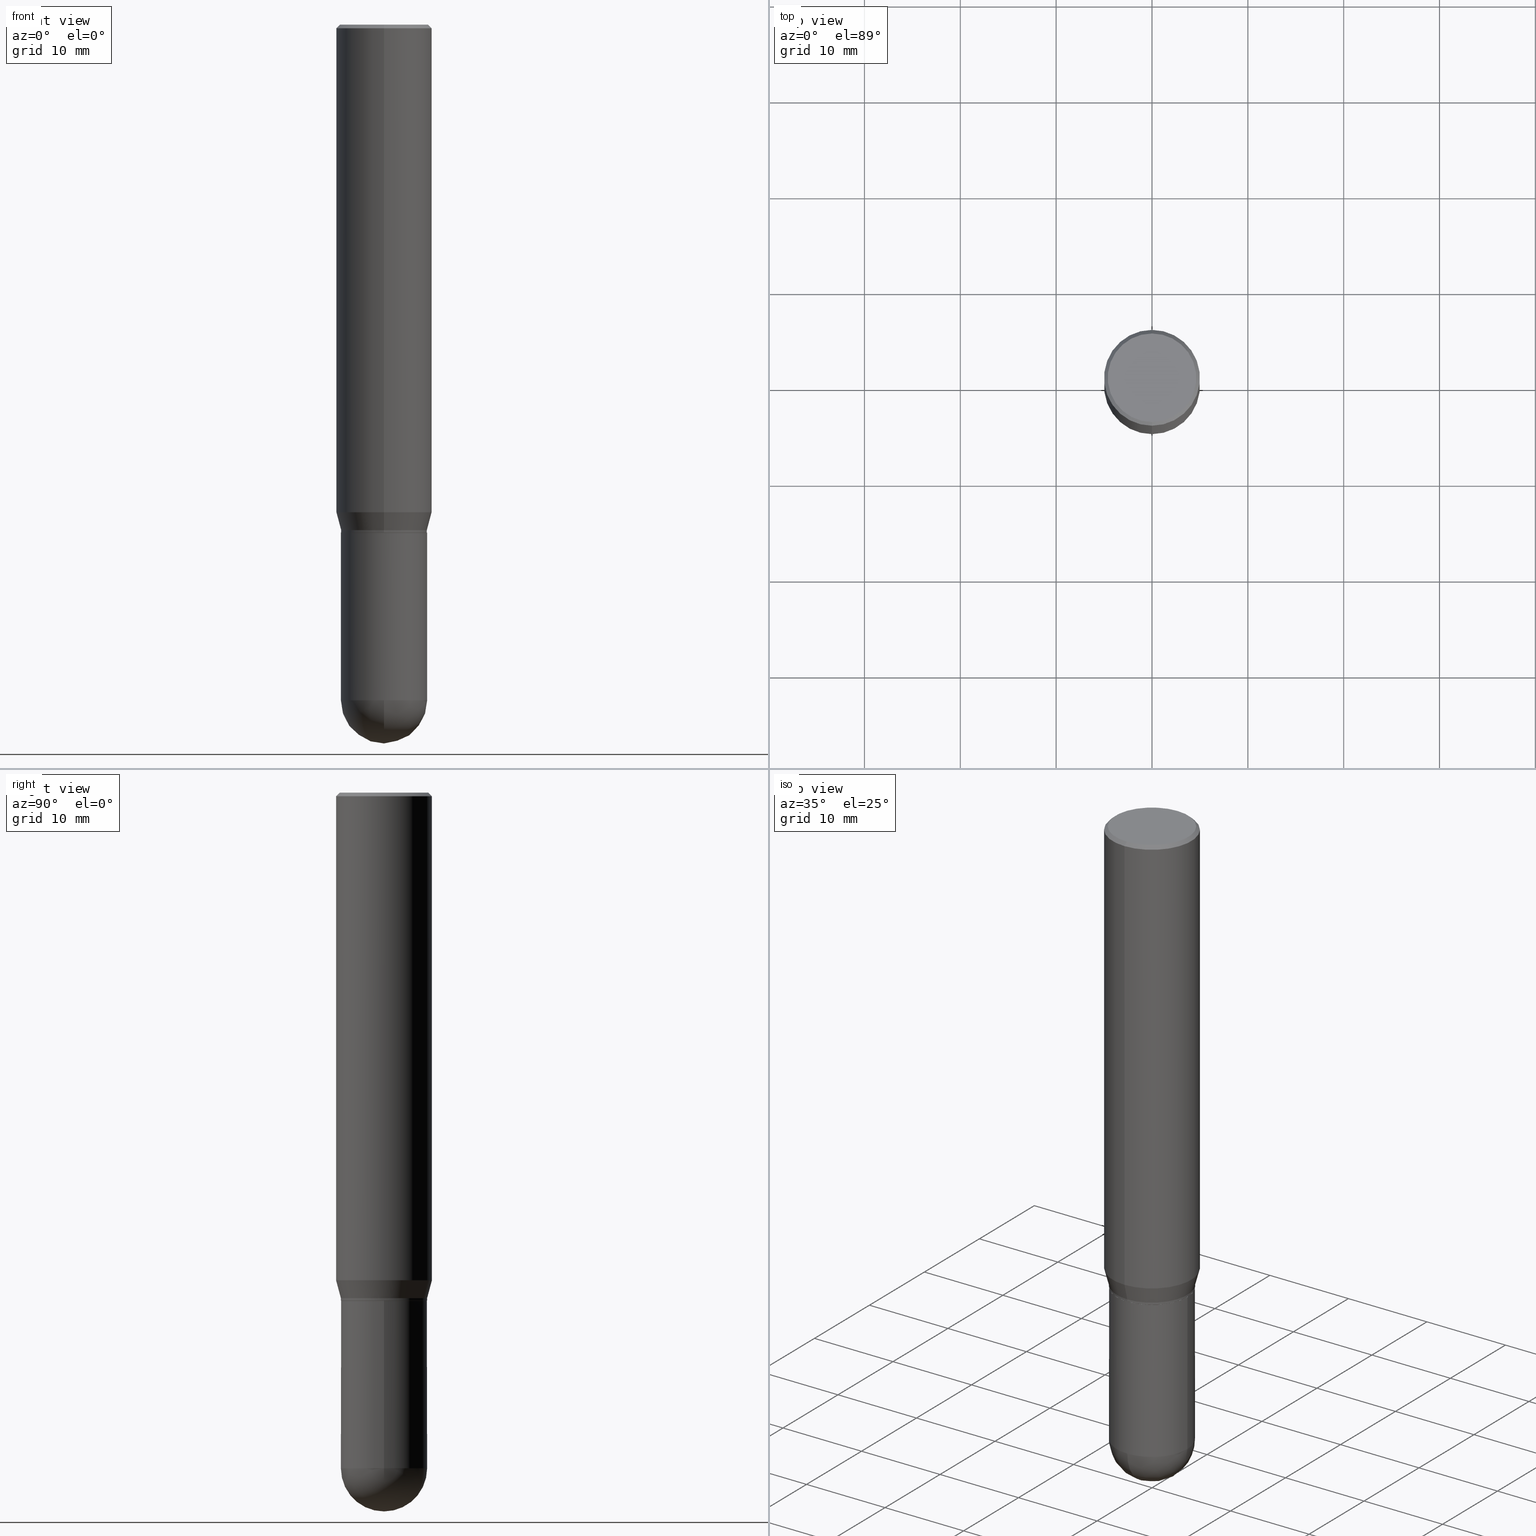
[diagram: canonical four-view strip — front | top / right | iso, engineering-drawing reading convention]
A machine part, canonical four-view strip (front | top / right | iso — engineering-drawing reading convention). The complete STEP part file that produces these views, byte-faithful:
ISO-10303-21;
HEADER;
FILE_DESCRIPTION (( 'STEP AP203' ),
    '1' );
FILE_NAME ('48619.STEP',
    '2024-03-08T13:11:55',
    ( '' ),
    ( '' ),
    'SwSTEP 2.0',
    'SolidWorks 2023',
    '' );
FILE_SCHEMA (( 'CONFIG_CONTROL_DESIGN' ));
ENDSEC;

DATA;
#1 = CARTESIAN_POINT ( 'NONE',  ( 6.787765491887772680E-29, -9.691130178159974964E-15, -2.775649999999999729 ) ) ;
#2 = ORIENTED_EDGE ( 'NONE', *, *, #481, .T. ) ;
#3 = VERTEX_POINT ( 'NONE', #431 ) ;
#4 = ORIENTED_EDGE ( 'NONE', *, *, #204, .T. ) ;
#5 = VECTOR ( 'NONE', #364, 39.37007874015748143 ) ;
#6 = ADVANCED_FACE ( 'NONE', ( #166 ), #368, .T. ) ;
#7 = CARTESIAN_POINT ( 'NONE',  ( 1.237031838352190236E-15, 0.1771499999999903430, -2.775650000000000173 ) ) ;
#8 = CIRCLE ( 'NONE', #153, 0.1766500000000000847 ) ;
#9 = ORIENTED_EDGE ( 'NONE', *, *, #190, .T. ) ;
#10 = FACE_OUTER_BOUND ( 'NONE', #78, .T. ) ;
#11 = EDGE_LOOP ( 'NONE', ( #415, #81, #39, #95 ) ) ;
#12 = FACE_OUTER_BOUND ( 'NONE', #33, .T. ) ;
#13 = APPROVAL_ROLE ( '' ) ;
#14 = CARTESIAN_POINT ( 'NONE',  ( 6.813022828238686978E-29, -9.654960234947156736E-15, -2.775649999999999729 ) ) ;
#15 = AXIS2_PLACEMENT_3D ( 'NONE', #1, #360, #170 ) ;
#16 = EDGE_CURVE ( 'NONE', #316, #132, #152, .T. ) ;
#17 = CARTESIAN_POINT ( 'NONE',  ( 5.103063401817525285E-29, -7.285525685727110320E-15, -2.086699999999999999 ) ) ;
#18 = DIRECTION ( 'NONE',  ( -6.982962677686265922E-15, -1.000000000000000000, 3.491410210249250493E-15 ) ) ;
#19 = CARTESIAN_POINT ( 'NONE',  ( -1.237031838352121999E-15, -0.1771500000000000019, 6.185033187456547433E-16 ) ) ;
#20 = DIRECTION ( 'NONE',  ( -2.445518475016785291E-29, 3.491410210249250493E-15, 1.000000000000000000 ) ) ;
#21 = ADVANCED_FACE ( 'NONE', ( #249 ), #129, .T. ) ;
#22 = AXIS2_PLACEMENT_3D ( 'NONE', #406, #412, #172 ) ;
#23 = CIRCLE ( 'NONE', #377, 0.1968500000000000250 ) ;
#24 = PERSON_AND_ORGANIZATION_ROLE ( 'design_owner' ) ;
#25 = DIRECTION ( 'NONE',  ( -6.982962677686265133E-15, -1.000000000000000000, 3.491137977679279424E-15 ) ) ;
#26 = EDGE_LOOP ( 'NONE', ( #459, #206, #470, #286 ) ) ;
#27 = COORDINATED_UNIVERSAL_TIME_OFFSET ( 5, 0, .BEHIND. ) ;
#28 = CARTESIAN_POINT ( 'NONE',  ( 5.102959757866523939E-29, -7.285674109763990928E-15, -2.086699999999999999 ) ) ;
#29 = ORIENTED_EDGE ( 'NONE', *, *, #165, .T. ) ;
#30 = COORDINATED_UNIVERSAL_TIME_OFFSET ( 5, 0, .BEHIND. ) ;
#31 = CARTESIAN_POINT ( 'NONE',  ( 0.000000000000000000, 0.000000000000000000, 0.000000000000000000 ) ) ;
#32 = CC_DESIGN_DATE_AND_TIME_ASSIGNMENT ( #507, #392, ( #62 ) ) ;
#33 = EDGE_LOOP ( 'NONE', ( #2, #38, #94, #382 ) ) ;
#34 = AXIS2_PLACEMENT_3D ( 'NONE', #323, #244, #437 ) ;
#35 = DATE_AND_TIME ( #83, #124 ) ;
#36 = CONICAL_SURFACE ( 'NONE', #210, 0.1766500000000000847, 0.7853981633974824739 ) ;
#37 = SPHERICAL_SURFACE ( 'NONE', #485, 0.1771500000000000574 ) ;
#38 = ORIENTED_EDGE ( 'NONE', *, *, #506, .T. ) ;
#39 = ORIENTED_EDGE ( 'NONE', *, *, #481, .F. ) ;
#40 = CARTESIAN_POINT ( 'NONE',  ( 4.898810272835023287E-29, -6.993918213818736986E-15, -2.003178599090893464 ) ) ;
#41 = CIRCLE ( 'NONE', #484, 0.1771500000000000574 ) ;
#42 = LOCAL_TIME ( 8, 11, 55.00000000000000000, #30 ) ;
#43 = ORIENTED_EDGE ( 'NONE', *, *, #468, .F. ) ;
#44 = EDGE_CURVE ( 'NONE', #287, #480, #217, .T. ) ;
#45 = CARTESIAN_POINT ( 'NONE',  ( -1.233540357013228308E-15, -0.1766500000000073567, -2.086699999999999555 ) ) ;
#46 = ORIENTED_EDGE ( 'NONE', *, *, #88, .F. ) ;
#47 = DIRECTION ( 'NONE',  ( -6.982962677686265922E-15, -1.000000000000000000, 4.163344669033675634E-15 ) ) ;
#48 = CIRCLE ( 'NONE', #353, 0.1818500000000000116 ) ;
#49 = DIRECTION ( 'NONE',  ( 2.445518475016785291E-29, -3.491410210249250493E-15, -1.000000000000000000 ) ) ;
#50 = LOCAL_TIME ( 8, 11, 55.00000000000000000, #405 ) ;
#51 = DIRECTION ( 'NONE',  ( -2.445518475016784731E-29, 3.491410210249250493E-15, 1.000000000000000000 ) ) ;
#52 = PRODUCT ( '48619', '48619', '', ( #372 ) ) ;
#53 =( NAMED_UNIT ( * ) SI_UNIT ( $, .STERADIAN. ) SOLID_ANGLE_UNIT ( ) );
#54 = EDGE_CURVE ( 'NONE', #3, #510, #501, .T. ) ;
#55 = DIRECTION ( 'NONE',  ( -2.445518475016785291E-29, 3.491410210249250493E-15, 1.000000000000000000 ) ) ;
#56 = EDGE_CURVE ( 'NONE', #279, #363, #167, .T. ) ;
#57 = CALENDAR_DATE ( 2024, 8, 3 ) ;
#58 = CYLINDRICAL_SURFACE ( 'NONE', #434, 0.1968499999999999694 ) ;
#59 = CLOSED_SHELL ( 'NONE', ( #159, #508, #21, #275, #6, #352, #247, #149, #221, #284, #495, #435 ) ) ;
#60 = CIRCLE ( 'NONE', #71, 0.1771500000000000019 ) ;
#61 = LINE ( 'NONE', #139, #168 ) ;
#62 = PRODUCT_DEFINITION ( 'UNKNOWN', '', #337, #157 ) ;
#63 = ORIENTED_EDGE ( 'NONE', *, *, #383, .T. ) ;
#64 = DIRECTION ( 'NONE',  ( -2.445518475016785291E-29, 3.491410210249250493E-15, 1.000000000000000000 ) ) ;
#65 = EDGE_CURVE ( 'NONE', #232, #193, #460, .T. ) ;
#66 = DIRECTION ( 'NONE',  ( 1.000000000000000000, -6.982962677686266711E-15, 4.876176775795934672E-29 ) ) ;
#67 = CARTESIAN_POINT ( 'NONE',  ( 1.328714915871437240E-15, 0.1771499999999927855, -2.076700000000000657 ) ) ;
#68 = FACE_OUTER_BOUND ( 'NONE', #160, .T. ) ;
#69 = VERTEX_POINT ( 'NONE', #45 ) ;
#70 = AXIS2_PLACEMENT_3D ( 'NONE', #91, #396, #125 ) ;
#71 = AXIS2_PLACEMENT_3D ( 'NONE', #198, #20, #234 ) ;
#72 = APPROVAL_STATUS ( 'not_yet_approved' ) ;
#73 = FACE_OUTER_BOUND ( 'NONE', #155, .T. ) ;
#74 = EDGE_LOOP ( 'NONE', ( #239, #340 ) ) ;
#75 = PERSON_AND_ORGANIZATION_ROLE ( 'creator' ) ;
#76 = APPROVAL ( #441, 'UNSPECIFIED' ) ;
#77 = CYLINDRICAL_SURFACE ( 'NONE', #407, 0.1771500000000000019 ) ;
#78 = EDGE_LOOP ( 'NONE', ( #189, #9, #456, #171 ) ) ;
#79 = COORDINATED_UNIVERSAL_TIME_OFFSET ( 5, 0, .BEHIND. ) ;
#80 = FACE_OUTER_BOUND ( 'NONE', #351, .T. ) ;
#81 = ORIENTED_EDGE ( 'NONE', *, *, #156, .T. ) ;
#82 = CIRCLE ( 'NONE', #361, 0.1968499999999999694 ) ;
#83 = CALENDAR_DATE ( 2024, 8, 3 ) ;
#84 = VECTOR ( 'NONE', #116, 39.37007874015748143 ) ;
#85 = ORIENTED_EDGE ( 'NONE', *, *, #424, .T. ) ;
#86 = EDGE_CURVE ( 'NONE', #510, #3, #209, .T. ) ;
#87 = PERSON_AND_ORGANIZATION ( #229, #293 ) ;
#88 = EDGE_CURVE ( 'NONE', #3, #363, #242, .T. ) ;
#89 = CARTESIAN_POINT ( 'NONE',  ( 6.787765491887772680E-29, -9.691130178159974964E-15, -2.775649999999999729 ) ) ;
#90 = MANIFOLD_SOLID_BREP ( 'Body-Move/Copy2[2]', #59 ) ;
#91 = CARTESIAN_POINT ( 'NONE',  ( 4.898810272835023287E-29, -6.993918213818736986E-15, -2.003178599090893464 ) ) ;
#92 = APPROVAL_PERSON_ORGANIZATION ( #502, #246, #498 ) ;
#93 = CARTESIAN_POINT ( 'NONE',  ( 3.668277712525295050E-31, -5.237115315374042436E-17, -0.01500000000000047823 ) ) ;
#94 = ORIENTED_EDGE ( 'NONE', *, *, #54, .F. ) ;
#95 = ORIENTED_EDGE ( 'NONE', *, *, #380, .F. ) ;
#96 = AXIS2_PLACEMENT_3D ( 'NONE', #326, #126, #477 ) ;
#97 = DIRECTION ( 'NONE',  ( -2.445468806185136597E-29, 3.491481338843145583E-15, 1.000000000000000000 ) ) ;
#98 = VECTOR ( 'NONE', #455, 39.37007874015748143 ) ;
#99 = LINE ( 'NONE', #330, #440 ) ;
#100 = ADVANCED_FACE ( 'NONE', ( #10 ), #398, .T. ) ;
#101 = CARTESIAN_POINT ( 'NONE',  ( 5.103063401817525285E-29, -7.285525685727110320E-15, -2.086699999999999999 ) ) ;
#102 = FACE_OUTER_BOUND ( 'NONE', #74, .T. ) ;
#103 = CARTESIAN_POINT ( 'NONE',  ( 1.398703375343756802E-15, 0.1968499999999999694, -6.872840998875648867E-16 ) ) ;
#104 = CARTESIAN_POINT ( 'NONE',  ( 1.322223983019894726E-15, 0.1818500000000000116, -1.113623735444311959E-15 ) ) ;
#105 = CONICAL_SURFACE ( 'NONE', #130, 0.1771500000000000019, 0.2617993877991499074 ) ;
#106 = EDGE_CURVE ( 'NONE', #300, #309, #302, .T. ) ;
#107 = DIRECTION ( 'NONE',  ( -2.445518475016785291E-29, 3.491410210249250493E-15, 1.000000000000000000 ) ) ;
#108 = LINE ( 'NONE', #404, #161 ) ;
#109 = DIRECTION ( 'NONE',  ( 0.000000000000000000, 0.000000000000000000, 1.000000000000000000 ) ) ;
#110 = CYLINDRICAL_SURFACE ( 'NONE', #243, 0.1771500000000000574 ) ;
#111 = ORIENTED_EDGE ( 'NONE', *, *, #44, .F. ) ;
#112 = DIRECTION ( 'NONE',  ( 2.438088387897960049E-29, -3.491481338843145188E-15, -1.000000000000000000 ) ) ;
#113 = EDGE_LOOP ( 'NONE', ( #358, #182, #274, #266 ) ) ;
#114 = AXIS2_PLACEMENT_3D ( 'NONE', #89, #163, #436 ) ;
#115 = APPROVAL_PERSON_ORGANIZATION ( #87, #179, #469 ) ;
#116 = DIRECTION ( 'NONE',  ( -2.445518475016785291E-29, 3.491410210249250493E-15, 1.000000000000000000 ) ) ;
#117 = ORIENTED_EDGE ( 'NONE', *, *, #156, .F. ) ;
#118 = PERSON_AND_ORGANIZATION ( #229, #293 ) ;
#119 = CARTESIAN_POINT ( 'NONE',  ( -1.233540357013228308E-15, -0.1766500000000073567, -2.086699999999999555 ) ) ;
#120 = ORIENTED_EDGE ( 'NONE', *, *, #106, .F. ) ;
#121 = PERSON_AND_ORGANIZATION ( #229, #293 ) ;
#122 = VERTEX_POINT ( 'NONE', #318 ) ;
#123 = DATE_TIME_ROLE ( 'classification_date' ) ;
#124 = LOCAL_TIME ( 8, 11, 55.00000000000000000, #194 ) ;
#125 = DIRECTION ( 'NONE',  ( -6.982962677686265922E-15, -1.000000000000000000, 4.163344669033675634E-15 ) ) ;
#126 = DIRECTION ( 'NONE',  ( -2.445468806185136597E-29, 3.491481338843145583E-15, 1.000000000000000000 ) ) ;
#127 = CARTESIAN_POINT ( 'NONE',  ( 5.078608217067359004E-29, -7.250611583624619637E-15, -2.076700000000000212 ) ) ;
#128 = CC_DESIGN_PERSON_AND_ORGANIZATION_ASSIGNMENT ( #282, #75, ( #62 ) ) ;
#129 = CONICAL_SURFACE ( 'NONE', #336, 0.1968500000000000250, 0.7853981633974485010 ) ;
#130 = AXIS2_PLACEMENT_3D ( 'NONE', #387, #195, #225 ) ;
#131 = EDGE_CURVE ( 'NONE', #363, #279, #82, .T. ) ;
#132 = VERTEX_POINT ( 'NONE', #7 ) ;
#133 = DIRECTION ( 'NONE',  ( -2.445518475016785291E-29, 3.491410210249250493E-15, 1.000000000000000000 ) ) ;
#134 = CC_DESIGN_PERSON_AND_ORGANIZATION_ASSIGNMENT ( #191, #267, ( #395 ) ) ;
#135 = CARTESIAN_POINT ( 'NONE',  ( 0.000000000000000000, 0.000000000000000000, 0.000000000000000000 ) ) ;
#136 = APPLICATION_PROTOCOL_DEFINITION ( 'international standard', 'config_control_design', 1994, #430 ) ;
#137 = CIRCLE ( 'NONE', #503, 0.1771500000000000574 ) ;
#138 = CYLINDRICAL_SURFACE ( 'NONE', #416, 0.1771500000000000019 ) ;
#139 = CARTESIAN_POINT ( 'NONE',  ( -0.1771500000000000574, 1.258726456399017887E-15, -8.713893512386568128E-30 ) ) ;
#140 = DIRECTION ( 'NONE',  ( -2.445468806185136597E-29, 3.491481338843145583E-15, 1.000000000000000000 ) ) ;
#141 = DIRECTION ( 'NONE',  ( -6.982962677686265133E-15, -1.000000000000000000, 3.491410210249250888E-15 ) ) ;
#142 = CARTESIAN_POINT ( 'NONE',  ( 0.000000000000000000, 0.000000000000000000, 0.000000000000000000 ) ) ;
#143 = CONICAL_SURFACE ( 'NONE', #461, 0.1766500000000000847, 0.7853981633974824739 ) ;
#144 = DIRECTION ( 'NONE',  ( -1.000000000000000000, 6.982962677686265133E-15, -4.883557194083112340E-29 ) ) ;
#145 = APPROVAL_STATUS ( 'not_yet_approved' ) ;
#146 = CARTESIAN_POINT ( 'NONE',  ( 3.668277712525295050E-31, -5.237115315374042436E-17, -0.01500000000000047823 ) ) ;
#147 = EDGE_CURVE ( 'NONE', #317, #202, #48, .T. ) ;
#148 = ORIENTED_EDGE ( 'NONE', *, *, #190, .F. ) ;
#149 = ADVANCED_FACE ( 'NONE', ( #354 ), #471, .T. ) ;
#150 = CARTESIAN_POINT ( 'NONE',  ( -1.374596203102492502E-15, -0.1968500000000069916, -2.003178599090893020 ) ) ;
#151 = ORIENTED_EDGE ( 'NONE', *, *, #86, .F. ) ;
#152 = CIRCLE ( 'NONE', #15, 0.1771500000000000574 ) ;
#153 = AXIS2_PLACEMENT_3D ( 'NONE', #443, #487, #252 ) ;
#154 = LINE ( 'NONE', #306, #162 ) ;
#155 = EDGE_LOOP ( 'NONE', ( #148, #29, #120, #463 ) ) ;
#156 = EDGE_CURVE ( 'NONE', #212, #122, #108, .T. ) ;
#157 = DESIGN_CONTEXT ( 'detailed design', #430, 'design' ) ;
#158 = ORIENTED_EDGE ( 'NONE', *, *, #380, .T. ) ;
#159 = ADVANCED_FACE ( 'NONE', ( #12 ), #138, .T. ) ;
#160 = EDGE_LOOP ( 'NONE', ( #452, #196, #447, #271 ) ) ;
#161 = VECTOR ( 'NONE', #375, 39.37007874015748854 ) ;
#162 = VECTOR ( 'NONE', #188, 39.37007874015748143 ) ;
#163 = DIRECTION ( 'NONE',  ( -2.445468806185136597E-29, 3.491481338843145583E-15, 1.000000000000000000 ) ) ;
#164 = ORIENTED_EDGE ( 'NONE', *, *, #65, .F. ) ;
#165 = EDGE_CURVE ( 'NONE', #427, #309, #268, .T. ) ;
#166 = FACE_OUTER_BOUND ( 'NONE', #235, .T. ) ;
#167 = CIRCLE ( 'NONE', #70, 0.1968499999999999694 ) ;
#168 = VECTOR ( 'NONE', #222, 39.37007874015748143 ) ;
#169 = CC_DESIGN_SECURITY_CLASSIFICATION ( #395, ( #337 ) ) ;
#170 = DIRECTION ( 'NONE',  ( 1.000000000000000000, -6.982962677686270655E-15, 0.000000000000000000 ) ) ;
#171 = ORIENTED_EDGE ( 'NONE', *, *, #313, .F. ) ;
#172 = DIRECTION ( 'NONE',  ( 6.982962677686265133E-15, 1.000000000000000000, -3.491137977679279424E-15 ) ) ;
#173 = ORIENTED_EDGE ( 'NONE', *, *, #56, .T. ) ;
#174 = DIRECTION ( 'NONE',  ( -2.445518475016785291E-29, 3.491410210249250493E-15, 1.000000000000000000 ) ) ;
#175 =( LENGTH_UNIT ( ) NAMED_UNIT ( * ) SI_UNIT ( $, .METRE. ) );
#176 = LOCAL_TIME ( 8, 11, 55.00000000000000000, #27 ) ;
#177 = FACE_OUTER_BOUND ( 'NONE', #348, .T. ) ;
#178 = DIRECTION ( 'NONE',  ( -6.982962677686265133E-15, -1.000000000000000000, 3.092949893760839854E-15 ) ) ;
#179 = APPROVAL ( #72, 'UNSPECIFIED' ) ;
#180 = DIMENSIONAL_EXPONENTS ( 1.000000000000000000, 0.000000000000000000, 0.000000000000000000, 0.000000000000000000, 0.000000000000000000, 0.000000000000000000, 0.000000000000000000 ) ;
#181 = CYLINDRICAL_SURFACE ( 'NONE', #511, 0.1771500000000000574 ) ;
#182 = ORIENTED_EDGE ( 'NONE', *, *, #475, .T. ) ;
#183 = APPLICATION_PROTOCOL_DEFINITION ( 'international standard', 'config_control_design', 1994, #467 ) ;
#184 = LINE ( 'NONE', #119, #369 ) ;
#185 = PRODUCT_DEFINITION_SHAPE ( 'NONE', 'NONE',  #62 ) ;
#186 = DIRECTION ( 'NONE',  ( -2.445518475016785291E-29, 3.491410210249250493E-15, 1.000000000000000000 ) ) ;
#187 = ADVANCED_FACE ( 'NONE', ( #367 ), #181, .T. ) ;
#188 = DIRECTION ( 'NONE',  ( -4.851104656540965064E-15, -0.7071067811865501263, -0.7071067811865449082 ) ) ;
#189 = ORIENTED_EDGE ( 'NONE', *, *, #165, .F. ) ;
#190 = EDGE_CURVE ( 'NONE', #427, #132, #439, .T. ) ;
#191 = PERSON_AND_ORGANIZATION ( #229, #293 ) ;
#192 = DIRECTION ( 'NONE',  ( 1.000000000000000000, -6.982962677686269077E-15, 0.000000000000000000 ) ) ;
#193 = VERTEX_POINT ( 'NONE', #299 ) ;
#194 = COORDINATED_UNIVERSAL_TIME_OFFSET ( 5, 0, .BEHIND. ) ;
#195 = DIRECTION ( 'NONE',  ( -2.445518475016785291E-29, 3.491410210249250493E-15, 1.000000000000000000 ) ) ;
#196 = ORIENTED_EDGE ( 'NONE', *, *, #86, .T. ) ;
#197 = CIRCLE ( 'NONE', #388, 0.1818500000000000116 ) ;
#198 = CARTESIAN_POINT ( 'NONE',  ( 5.101840642580017980E-29, -7.283779980621986259E-15, -2.086199999999999832 ) ) ;
#199 = ORIENTED_EDGE ( 'NONE', *, *, #65, .T. ) ;
#200 = UNCERTAINTY_MEASURE_WITH_UNIT (LENGTH_MEASURE( 1.000000000000000082E-05 ), #450, 'distance_accuracy_value', 'NONE');
#201 = EDGE_LOOP ( 'NONE', ( #433, #85, #228, #151 ) ) ;
#202 = VERTEX_POINT ( 'NONE', #104 ) ;
#203 = AXIS2_PLACEMENT_3D ( 'NONE', #14, #446, #332 ) ;
#204 = EDGE_CURVE ( 'NONE', #132, #300, #41, .T. ) ;
#205 = CARTESIAN_POINT ( 'NONE',  ( 3.668277712525295050E-31, -5.237115315374042436E-17, -0.01500000000000047823 ) ) ;
#206 = ORIENTED_EDGE ( 'NONE', *, *, #448, .T. ) ;
#207 = CARTESIAN_POINT ( 'NONE',  ( 5.078608217067359004E-29, -7.250611583624619637E-15, -2.076700000000000212 ) ) ;
#208 = ORIENTED_EDGE ( 'NONE', *, *, #479, .F. ) ;
#209 = CIRCLE ( 'NONE', #236, 0.1771500000000000019 ) ;
#210 = AXIS2_PLACEMENT_3D ( 'NONE', #374, #64, #370 ) ;
#211 = DIRECTION ( 'NONE',  ( -2.445518475016785291E-29, 3.491410210249250493E-15, 1.000000000000000000 ) ) ;
#212 = VERTEX_POINT ( 'NONE', #259 ) ;
#213 = DIRECTION ( 'NONE',  ( -6.982962677686265922E-15, -1.000000000000000000, 3.491410210249250493E-15 ) ) ;
#214 = LINE ( 'NONE', #103, #478 ) ;
#215 = CARTESIAN_POINT ( 'NONE',  ( 6.813022828238686978E-29, -9.654960234947156736E-15, -2.775649999999999729 ) ) ;
#216 = CARTESIAN_POINT ( 'NONE',  ( 1.170696077981349666E-44, -1.671375735460261501E-30, -4.787107887104857586E-16 ) ) ;
#217 = CIRCLE ( 'NONE', #96, 0.1771500000000000852 ) ;
#218 = AXIS2_PLACEMENT_3D ( 'NONE', #489, #408, #492 ) ;
#219 = FACE_OUTER_BOUND ( 'NONE', #389, .T. ) ;
#220 = LOCAL_TIME ( 8, 11, 55.00000000000000000, #79 ) ;
#221 = ADVANCED_FACE ( 'NONE', ( #177 ), #303, .F. ) ;
#222 = DIRECTION ( 'NONE',  ( -2.445468806185136877E-29, 3.491481338843145188E-15, 1.000000000000000000 ) ) ;
#223 = FACE_OUTER_BOUND ( 'NONE', #262, .T. ) ;
#224 = CLOSED_SHELL ( 'NONE', ( #457, #359, #295, #100, #187 ) ) ;
#225 = DIRECTION ( 'NONE',  ( -6.982962677686265922E-15, -1.000000000000000000, 3.084220145260246224E-15 ) ) ;
#226 = VERTEX_POINT ( 'NONE', #410 ) ;
#227 = DATE_AND_TIME ( #230, #176 ) ;
#228 = ORIENTED_EDGE ( 'NONE', *, *, #278, .T. ) ;
#229 = PERSON ( 'UNSPECIFIED', 'UNSPECIFIED', 'UNSPECIFIED', ('UNSPECIFIED'), ('UNSPECIFIED'), ('UNSPECIFIED') ) ;
#230 = CALENDAR_DATE ( 2024, 8, 3 ) ;
#231 = LINE ( 'NONE', #378, #84 ) ;
#232 = VERTEX_POINT ( 'NONE', #297 ) ;
#233 = DATE_AND_TIME ( #57, #50 ) ;
#234 = DIRECTION ( 'NONE',  ( -6.982962677686265922E-15, -1.000000000000000000, 3.084220145260246224E-15 ) ) ;
#235 = EDGE_LOOP ( 'NONE', ( #505, #245, #425, #46 ) ) ;
#236 = AXIS2_PLACEMENT_3D ( 'NONE', #127, #211, #248 ) ;
#237 = AXIS2_PLACEMENT_3D ( 'NONE', #101, #253, #178 ) ;
#238 = CALENDAR_DATE ( 2024, 8, 3 ) ;
#239 = ORIENTED_EDGE ( 'NONE', *, *, #290, .F. ) ;
#240 = CALENDAR_DATE ( 2024, 8, 3 ) ;
#241 = ORIENTED_EDGE ( 'NONE', *, *, #44, .T. ) ;
#242 = LINE ( 'NONE', #357, #5 ) ;
#243 = AXIS2_PLACEMENT_3D ( 'NONE', #265, #496, #305 ) ;
#244 = DIRECTION ( 'NONE',  ( -2.445518475016785291E-29, 3.491410210249250493E-15, 1.000000000000000000 ) ) ;
#245 = ORIENTED_EDGE ( 'NONE', *, *, #426, .T. ) ;
#246 = APPROVAL ( #145, 'UNSPECIFIED' ) ;
#247 = ADVANCED_FACE ( 'NONE', ( #223 ), #292, .T. ) ;
#248 = DIRECTION ( 'NONE',  ( -6.982962677686265922E-15, -1.000000000000000000, 3.084220145260246224E-15 ) ) ;
#249 = FACE_OUTER_BOUND ( 'NONE', #26, .T. ) ;
#250 = CIRCLE ( 'NONE', #237, 0.1766500000000000847 ) ;
#251 = CARTESIAN_POINT ( 'NONE',  ( 1.398703375343805514E-15, 0.1968499999999929750, -2.003178599090894352 ) ) ;
#252 = DIRECTION ( 'NONE',  ( -6.982962677686265133E-15, -1.000000000000000000, 3.092949893760839854E-15 ) ) ;
#253 = DIRECTION ( 'NONE',  ( -2.445518475016785291E-29, 3.491410210249250493E-15, 1.000000000000000000 ) ) ;
#254 = DIRECTION ( 'NONE',  ( 1.000000000000000000, 0.000000000000000000, 0.000000000000000000 ) ) ;
#255 = CC_DESIGN_PERSON_AND_ORGANIZATION_ASSIGNMENT ( #263, #24, ( #52 ) ) ;
#256 = PLANE ( 'NONE',  #288 ) ;
#257 = FACE_OUTER_BOUND ( 'NONE', #11, .T. ) ;
#258 = CIRCLE ( 'NONE', #218, 0.1771500000000000019 ) ;
#259 = CARTESIAN_POINT ( 'NONE',  ( 1.256950099559668320E-15, 0.1766499999999928128, -2.086700000000000443 ) ) ;
#260 = DIRECTION ( 'NONE',  ( -2.445518475016785291E-29, 3.491410210249250493E-15, 1.000000000000000000 ) ) ;
#261 = DIRECTION ( 'NONE',  ( -7.105427357600999492E-15, -1.000000000000000000, 0.000000000000000000 ) ) ;
#262 = EDGE_LOOP ( 'NONE', ( #379, #173, #350, #164 ) ) ;
#263 = PERSON_AND_ORGANIZATION ( #229, #293 ) ;
#264 = EDGE_CURVE ( 'NONE', #300, #287, #61, .T. ) ;
#265 = CARTESIAN_POINT ( 'NONE',  ( 0.000000000000000000, 0.000000000000000000, 0.000000000000000000 ) ) ;
#266 = ORIENTED_EDGE ( 'NONE', *, *, #343, .F. ) ;
#267 = PERSON_AND_ORGANIZATION_ROLE ( 'classification_officer' ) ;
#268 = CIRCLE ( 'NONE', #319, 0.1771500000000000574 ) ;
#269 = DIRECTION ( 'NONE',  ( 1.000000000000000000, -6.982962677686270655E-15, 0.000000000000000000 ) ) ;
#270 = VECTOR ( 'NONE', #338, 39.37007874015748854 ) ;
#271 = ORIENTED_EDGE ( 'NONE', *, *, #56, .F. ) ;
#272 = MANIFOLD_SOLID_BREP ( 'Body-Move/Copy2[1]', #224 ) ;
#273 = LINE ( 'NONE', #381, #270 ) ;
#274 = ORIENTED_EDGE ( 'NONE', *, *, #320, .F. ) ;
#275 = ADVANCED_FACE ( 'NONE', ( #482 ), #58, .T. ) ;
#276 = DIRECTION ( 'NONE',  ( -4.937700262164715281E-15, -0.7071067811865691111, 0.7071067811865257013 ) ) ;
#277 = ORIENTED_EDGE ( 'NONE', *, *, #147, .T. ) ;
#278 = EDGE_CURVE ( 'NONE', #226, #3, #444, .T. ) ;
#279 = VERTEX_POINT ( 'NONE', #251 ) ;
#280 = AXIS2_PLACEMENT_3D ( 'NONE', #394, #429, #289 ) ;
#281 = AXIS2_PLACEMENT_3D ( 'NONE', #453, #109, #254 ) ;
#282 = PERSON_AND_ORGANIZATION ( #229, #293 ) ;
#283 = DIRECTION ( 'NONE',  ( -2.445518475016785291E-29, 3.491410210249250493E-15, 1.000000000000000000 ) ) ;
#284 = ADVANCED_FACE ( 'NONE', ( #102 ), #256, .F. ) ;
#285 = ADVANCED_BREP_SHAPE_REPRESENTATION ( '48619', ( #272, #90, #281 ), #491 ) ;
#286 = ORIENTED_EDGE ( 'NONE', *, *, #383, .F. ) ;
#287 = VERTEX_POINT ( 'NONE', #365 ) ;
#288 = AXIS2_PLACEMENT_3D ( 'NONE', #483, #51, #213 ) ;
#289 = DIRECTION ( 'NONE',  ( 6.982962677686265133E-15, 1.000000000000000000, -3.084220145260245435E-15 ) ) ;
#290 = EDGE_CURVE ( 'NONE', #69, #212, #250, .T. ) ;
#291 = DIRECTION ( 'NONE',  ( 6.982962677686265133E-15, 1.000000000000000000, -3.491137977679279424E-15 ) ) ;
#292 = CYLINDRICAL_SURFACE ( 'NONE', #472, 0.1968499999999999694 ) ;
#293 = ORGANIZATION ( 'UNSPECIFIED', 'UNSPECIFIED', '' ) ;
#294 = CARTESIAN_POINT ( 'NONE',  ( 0.000000000000000000, 0.000000000000000000, 0.000000000000000000 ) ) ;
#295 = ADVANCED_FACE ( 'NONE', ( #219 ), #371, .F. ) ;
#296 = PERSON_AND_ORGANIZATION ( #229, #293 ) ;
#297 = CARTESIAN_POINT ( 'NONE',  ( 1.398703375343806303E-15, 0.1968499999999999139, -0.01500000000000116518 ) ) ;
#298 = DIRECTION ( 'NONE',  ( -2.445468806185136877E-29, 3.491481338843145188E-15, 1.000000000000000000 ) ) ;
#299 = CARTESIAN_POINT ( 'NONE',  ( -1.374596203102541017E-15, -0.1968500000000000805, -0.01499999999999979128 ) ) ;
#300 = VERTEX_POINT ( 'NONE', #499 ) ;
#301 = CARTESIAN_POINT ( 'NONE',  ( 1.258726456399017296E-15, 0.1771500000000000019, -6.185033187456547433E-16 ) ) ;
#302 = CIRCLE ( 'NONE', #114, 0.1771500000000000574 ) ;
#303 = PLANE ( 'NONE',  #329 ) ;
#304 = ORIENTED_EDGE ( 'NONE', *, *, #468, .T. ) ;
#305 = DIRECTION ( 'NONE',  ( 1.000000000000000000, -6.982962677686266711E-15, 4.876176775795934672E-29 ) ) ;
#306 = CARTESIAN_POINT ( 'NONE',  ( -1.350489030861325429E-15, -0.1968500000000000805, -0.01499999999999979128 ) ) ;
#307 = PERSON_AND_ORGANIZATION_ROLE ( 'design_supplier' ) ;
#308 = CARTESIAN_POINT ( 'NONE',  ( 6.787765491887772680E-29, -9.691130178159974964E-15, -2.775649999999999729 ) ) ;
#309 = VERTEX_POINT ( 'NONE', #315 ) ;
#310 = DIRECTION ( 'NONE',  ( -2.445468806185136597E-29, 3.491481338843145583E-15, 1.000000000000000000 ) ) ;
#311 = CC_DESIGN_APPROVAL ( #76, ( #62 ) ) ;
#312 = ORIENTED_EDGE ( 'NONE', *, *, #479, .T. ) ;
#313 = EDGE_CURVE ( 'NONE', #309, #316, #137, .T. ) ;
#314 = SHAPE_DEFINITION_REPRESENTATION ( #185, #285 ) ;
#315 = CARTESIAN_POINT ( 'NONE',  ( -1.258726456398949454E-15, -0.1771500000000097441, -2.775649999999999284 ) ) ;
#316 = VERTEX_POINT ( 'NONE', #414 ) ;
#317 = VERTEX_POINT ( 'NONE', #418 ) ;
#318 = CARTESIAN_POINT ( 'NONE',  ( 1.258726456399067783E-15, 0.1771499999999926744, -2.086200000000000720 ) ) ;
#319 = AXIS2_PLACEMENT_3D ( 'NONE', #215, #451, #261 ) ;
#320 = EDGE_CURVE ( 'NONE', #193, #232, #23, .T. ) ;
#321 = DIRECTION ( 'NONE',  ( -2.445518475016785291E-29, 3.491410210249250493E-15, 1.000000000000000000 ) ) ;
#322 = DIRECTION ( 'NONE',  ( -6.982962677686265922E-15, -1.000000000000000000, 3.084220145260246224E-15 ) ) ;
#323 = CARTESIAN_POINT ( 'NONE',  ( 5.078608217067359004E-29, -7.250611583624619637E-15, -2.076700000000000212 ) ) ;
#324 = AXIS2_PLACEMENT_3D ( 'NONE', #205, #400, #476 ) ;
#325 = CC_DESIGN_PERSON_AND_ORGANIZATION_ASSIGNMENT ( #118, #307, ( #337 ) ) ;
#326 = CARTESIAN_POINT ( 'NONE',  ( 5.102959757866523939E-29, -7.285674109763990928E-15, -2.086699999999999999 ) ) ;
#327 = DIRECTION ( 'NONE',  ( 2.445518475016784731E-29, -3.491410210249250493E-15, -1.000000000000000000 ) ) ;
#328 = DIRECTION ( 'NONE',  ( -6.982962677686265922E-15, -1.000000000000000000, 3.491410210249250493E-15 ) ) ;
#329 = AXIS2_PLACEMENT_3D ( 'NONE', #486, #327, #335 ) ;
#330 = CARTESIAN_POINT ( 'NONE',  ( 0.1771500000000000574, -1.237031838352122591E-15, 8.638147158322501361E-30 ) ) ;
#331 = DIRECTION ( 'NONE',  ( 1.000000000000000000, -6.982962677686270655E-15, 0.000000000000000000 ) ) ;
#332 = DIRECTION ( 'NONE',  ( 6.982962677686264344E-15, 1.000000000000000000, 0.000000000000000000 ) ) ;
#333 = CC_DESIGN_DATE_AND_TIME_ASSIGNMENT ( #227, #123, ( #395 ) ) ;
#334 = CARTESIAN_POINT ( 'NONE',  ( 0.1771500000000000852, -8.522705948116114900E-15, -2.086699999999999999 ) ) ;
#335 = DIRECTION ( 'NONE',  ( 6.982962677686265922E-15, 1.000000000000000000, -3.491410210249250493E-15 ) ) ;
#336 = AXIS2_PLACEMENT_3D ( 'NONE', #93, #49, #291 ) ;
#337 = PRODUCT_DEFINITION_FORMATION_WITH_SPECIFIED_SOURCE ( 'ANY', '', #52, .NOT_KNOWN. ) ;
#338 = DIRECTION ( 'NONE',  ( 1.839019923739597554E-15, 0.2588190451025245697, 0.9659258262890670910 ) ) ;
#339 = CARTESIAN_POINT ( 'NONE',  ( 1.374596203102542003E-15, 0.1968499999999999417, -0.01500000000000116518 ) ) ;
#340 = ORIENTED_EDGE ( 'NONE', *, *, #493, .F. ) ;
#341 = SECURITY_CLASSIFICATION_LEVEL ( 'unclassified' ) ;
#342 = FACE_OUTER_BOUND ( 'NONE', #201, .T. ) ;
#343 = EDGE_CURVE ( 'NONE', #363, #193, #231, .T. ) ;
#344 = ORIENTED_EDGE ( 'NONE', *, *, #432, .F. ) ;
#345 = DIRECTION ( 'NONE',  ( -2.445468806185136597E-29, 3.491481338843145583E-15, 1.000000000000000000 ) ) ;
#346 = CIRCLE ( 'NONE', #449, 0.1771500000000000852 ) ;
#347 = CC_DESIGN_APPROVAL ( #246, ( #395 ) ) ;
#348 = EDGE_LOOP ( 'NONE', ( #304, #277 ) ) ;
#349 = APPROVAL_DATE_TIME ( #233, #76 ) ;
#350 = ORIENTED_EDGE ( 'NONE', *, *, #343, .T. ) ;
#351 = EDGE_LOOP ( 'NONE', ( #4, #391, #344, #208, #509 ) ) ;
#352 = ADVANCED_FACE ( 'NONE', ( #68 ), #105, .T. ) ;
#353 = AXIS2_PLACEMENT_3D ( 'NONE', #473, #283, #393 ) ;
#354 = FACE_OUTER_BOUND ( 'NONE', #399, .T. ) ;
#355 = APPROVAL_PERSON_ORGANIZATION ( #296, #76, #13 ) ;
#356 = ORIENTED_EDGE ( 'NONE', *, *, #313, .T. ) ;
#357 = CARTESIAN_POINT ( 'NONE',  ( -1.237031838352071315E-15, -0.1771500000000072461, -2.076699999999999768 ) ) ;
#358 = ORIENTED_EDGE ( 'NONE', *, *, #131, .T. ) ;
#359 = ADVANCED_FACE ( 'NONE', ( #73 ), #37, .T. ) ;
#360 = DIRECTION ( 'NONE',  ( -2.445468806185136597E-29, 3.491481338843145583E-15, 1.000000000000000000 ) ) ;
#361 = AXIS2_PLACEMENT_3D ( 'NONE', #40, #321, #47 ) ;
#362 = VECTOR ( 'NONE', #413, 39.37007874015748143 ) ;
#363 = VERTEX_POINT ( 'NONE', #150 ) ;
#364 = DIRECTION ( 'NONE',  ( -1.807323732225327773E-15, -0.2588190451025178529, 0.9659258262890690894 ) ) ;
#365 = CARTESIAN_POINT ( 'NONE',  ( -0.1771500000000000852, -7.229675687562965256E-15, -2.086699999999999999 ) ) ;
#366 = LENGTH_MEASURE_WITH_UNIT ( LENGTH_MEASURE( 0.02539999999999999897 ), #175 );
#367 = FACE_OUTER_BOUND ( 'NONE', #419, .T. ) ;
#368 = CONICAL_SURFACE ( 'NONE', #386, 0.1771500000000000019, 0.2617993877991499074 ) ;
#369 = VECTOR ( 'NONE', #276, 39.37007874015748854 ) ;
#370 = DIRECTION ( 'NONE',  ( -6.982962677686265133E-15, -1.000000000000000000, 3.092949893760839854E-15 ) ) ;
#371 = PLANE ( 'NONE',  #417 ) ;
#372 = MECHANICAL_CONTEXT ( 'NONE', #467, 'mechanical' ) ;
#373 = DIRECTION ( 'NONE',  ( -6.982962677686265922E-15, -1.000000000000000000, 3.491410210249250493E-15 ) ) ;
#374 = CARTESIAN_POINT ( 'NONE',  ( 5.103063401817525285E-29, -7.285525685727110320E-15, -2.086699999999999999 ) ) ;
#375 = DIRECTION ( 'NONE',  ( 5.024295867788231995E-15, 0.7071067811865739960, 0.7071067811865208164 ) ) ;
#376 = LINE ( 'NONE', #301, #362 ) ;
#377 = AXIS2_PLACEMENT_3D ( 'NONE', #146, #462, #25 ) ;
#378 = CARTESIAN_POINT ( 'NONE',  ( -1.374596203102541214E-15, -0.1968499999999999694, 6.872840998875648867E-16 ) ) ;
#379 = ORIENTED_EDGE ( 'NONE', *, *, #475, .F. ) ;
#380 = EDGE_CURVE ( 'NONE', #69, #226, #184, .T. ) ;
#381 = CARTESIAN_POINT ( 'NONE',  ( 1.258726456399067980E-15, 0.1771499999999927855, -2.076700000000000657 ) ) ;
#382 = ORIENTED_EDGE ( 'NONE', *, *, #278, .F. ) ;
#383 = EDGE_CURVE ( 'NONE', #202, #232, #384, .T. ) ;
#384 = LINE ( 'NONE', #339, #98 ) ;
#385 = ORIENTED_EDGE ( 'NONE', *, *, #106, .T. ) ;
#386 = AXIS2_PLACEMENT_3D ( 'NONE', #207, #133, #322 ) ;
#387 = CARTESIAN_POINT ( 'NONE',  ( 5.078608217067359004E-29, -7.250611583624619637E-15, -2.076700000000000212 ) ) ;
#388 = AXIS2_PLACEMENT_3D ( 'NONE', #216, #260, #141 ) ;
#389 = EDGE_LOOP ( 'NONE', ( #397, #241 ) ) ;
#390 = PERSON_AND_ORGANIZATION_ROLE ( 'creator' ) ;
#391 = ORIENTED_EDGE ( 'NONE', *, *, #264, .T. ) ;
#392 = DATE_TIME_ROLE ( 'creation_date' ) ;
#393 = DIRECTION ( 'NONE',  ( -6.982962677686265133E-15, -1.000000000000000000, 3.491410210249250888E-15 ) ) ;
#394 = CARTESIAN_POINT ( 'NONE',  ( 6.813022828238686978E-29, -9.654960234947156736E-15, -2.775649999999999729 ) ) ;
#395 = SECURITY_CLASSIFICATION ( '', '', #341 ) ;
#396 = DIRECTION ( 'NONE',  ( -2.445518475016785291E-29, 3.491410210249250493E-15, 1.000000000000000000 ) ) ;
#397 = ORIENTED_EDGE ( 'NONE', *, *, #432, .T. ) ;
#398 = SPHERICAL_SURFACE ( 'NONE', #280, 0.1771500000000000574 ) ;
#399 = EDGE_LOOP ( 'NONE', ( #421, #43, #63, #199 ) ) ;
#400 = DIRECTION ( 'NONE',  ( -2.445518475016785291E-29, 3.491410210249250493E-15, 1.000000000000000000 ) ) ;
#401 = CC_DESIGN_APPROVAL ( #179, ( #337 ) ) ;
#402 = CARTESIAN_POINT ( 'NONE',  ( 0.000000000000000000, 0.000000000000000000, 0.000000000000000000 ) ) ;
#403 = DIRECTION ( 'NONE',  ( -6.982962677686265133E-15, -1.000000000000000000, 3.092949893760839854E-15 ) ) ;
#404 = CARTESIAN_POINT ( 'NONE',  ( 1.255173742720268265E-15, 0.1766499999999928128, -2.086700000000000443 ) ) ;
#405 = COORDINATED_UNIVERSAL_TIME_OFFSET ( 5, 0, .BEHIND. ) ;
#406 = CARTESIAN_POINT ( 'NONE',  ( 3.668277712525295050E-31, -5.237115315374042436E-17, -0.01500000000000047823 ) ) ;
#407 = AXIS2_PLACEMENT_3D ( 'NONE', #31, #504, #494 ) ;
#408 = DIRECTION ( 'NONE',  ( -2.445518475016785291E-29, 3.491410210249250493E-15, 1.000000000000000000 ) ) ;
#409 = CC_DESIGN_PERSON_AND_ORGANIZATION_ASSIGNMENT ( #121, #390, ( #337 ) ) ;
#410 = CARTESIAN_POINT ( 'NONE',  ( -1.237031838352071512E-15, -0.1771500000000073571, -2.086199999999999388 ) ) ;
#411 = FACE_OUTER_BOUND ( 'NONE', #474, .T. ) ;
#412 = DIRECTION ( 'NONE',  ( 2.445518475016785291E-29, -3.491410210249250493E-15, -1.000000000000000000 ) ) ;
#413 = DIRECTION ( 'NONE',  ( -2.445518475016785291E-29, 3.491410210249250493E-15, 1.000000000000000000 ) ) ;
#414 = CARTESIAN_POINT ( 'NONE',  ( 0.1771500000000000574, -9.725433982314104551E-15, -2.775649999999999729 ) ) ;
#415 = ORIENTED_EDGE ( 'NONE', *, *, #290, .T. ) ;
#416 = AXIS2_PLACEMENT_3D ( 'NONE', #142, #55, #18 ) ;
#417 = AXIS2_PLACEMENT_3D ( 'NONE', #488, #112, #423 ) ;
#418 = CARTESIAN_POINT ( 'NONE',  ( -1.299035295878039226E-15, -0.1818500000000000116, 1.562021580233405403E-16 ) ) ;
#419 = EDGE_LOOP ( 'NONE', ( #500, #385, #356, #312, #111 ) ) ;
#420 = CARTESIAN_POINT ( 'NONE',  ( 7.253812262660790316E-29, -1.026262884509977305E-14, -2.952799999999999869 ) ) ;
#421 = ORIENTED_EDGE ( 'NONE', *, *, #448, .F. ) ;
#422 = APPROVAL_DATE_TIME ( #428, #246 ) ;
#423 = DIRECTION ( 'NONE',  ( -1.000000000000000000, 6.982962677686265922E-15, -4.876176775795935793E-29 ) ) ;
#424 = EDGE_CURVE ( 'NONE', #122, #226, #60, .T. ) ;
#425 = ORIENTED_EDGE ( 'NONE', *, *, #131, .F. ) ;
#426 = EDGE_CURVE ( 'NONE', #510, #279, #273, .T. ) ;
#427 = VERTEX_POINT ( 'NONE', #420 ) ;
#428 = DATE_AND_TIME ( #238, #220 ) ;
#429 = DIRECTION ( 'NONE',  ( -1.000000000000000000, 6.982962677686265133E-15, -4.883557194083112340E-29 ) ) ;
#430 = APPLICATION_CONTEXT ( 'configuration controlled 3d designs of mechanical parts and assemblies' ) ;
#431 = CARTESIAN_POINT ( 'NONE',  ( -1.237031838352071315E-15, -0.1771500000000072461, -2.076699999999999768 ) ) ;
#432 = EDGE_CURVE ( 'NONE', #480, #287, #346, .T. ) ;
#433 = ORIENTED_EDGE ( 'NONE', *, *, #506, .F. ) ;
#434 = AXIS2_PLACEMENT_3D ( 'NONE', #135, #438, #373 ) ;
#435 = ADVANCED_FACE ( 'NONE', ( #342 ), #77, .T. ) ;
#436 = DIRECTION ( 'NONE',  ( 1.000000000000000000, -6.982962677686270655E-15, 0.000000000000000000 ) ) ;
#437 = DIRECTION ( 'NONE',  ( -6.982962677686265922E-15, -1.000000000000000000, 3.084220145260246224E-15 ) ) ;
#438 = DIRECTION ( 'NONE',  ( -2.445518475016785291E-29, 3.491410210249250493E-15, 1.000000000000000000 ) ) ;
#439 = CIRCLE ( 'NONE', #203, 0.1771500000000000574 ) ;
#440 = VECTOR ( 'NONE', #298, 39.37007874015748143 ) ;
#441 = APPROVAL_STATUS ( 'not_yet_approved' ) ;
#442 = CARTESIAN_POINT ( 'NONE',  ( 6.787765491887772680E-29, -9.691130178159974964E-15, -2.775649999999999729 ) ) ;
#443 = CARTESIAN_POINT ( 'NONE',  ( 5.103063401817525285E-29, -7.285525685727110320E-15, -2.086699999999999999 ) ) ;
#444 = LINE ( 'NONE', #19, #512 ) ;
#445 =( NAMED_UNIT ( * ) PLANE_ANGLE_UNIT ( ) SI_UNIT ( $, .RADIAN. ) );
#446 = DIRECTION ( 'NONE',  ( 1.000000000000000000, -6.982962677686265922E-15, 4.883557194083112340E-29 ) ) ;
#447 = ORIENTED_EDGE ( 'NONE', *, *, #88, .T. ) ;
#448 = EDGE_CURVE ( 'NONE', #317, #193, #154, .T. ) ;
#449 = AXIS2_PLACEMENT_3D ( 'NONE', #28, #345, #192 ) ;
#450 =( CONVERSION_BASED_UNIT ( 'INCH', #366 ) LENGTH_UNIT ( ) NAMED_UNIT ( #180 ) );
#451 = DIRECTION ( 'NONE',  ( -1.000000000000000000, 7.105427357601001070E-15, -4.926315508542082329E-29 ) ) ;
#452 = ORIENTED_EDGE ( 'NONE', *, *, #426, .F. ) ;
#453 = CARTESIAN_POINT ( 'NONE',  ( 0.000000000000000000, 0.000000000000000000, 0.000000000000000000 ) ) ;
#454 = PRODUCT_RELATED_PRODUCT_CATEGORY ( 'detail', '', ( #52 ) ) ;
#455 = DIRECTION ( 'NONE',  ( 4.937700262164548831E-15, 0.7071067811865452413, -0.7071067811865497932 ) ) ;
#456 = ORIENTED_EDGE ( 'NONE', *, *, #16, .F. ) ;
#457 = ADVANCED_FACE ( 'NONE', ( #80 ), #110, .T. ) ;
#458 = DIRECTION ( 'NONE',  ( 6.982962677686265133E-15, 1.000000000000000000, -3.084220145260245435E-15 ) ) ;
#459 = ORIENTED_EDGE ( 'NONE', *, *, #147, .F. ) ;
#460 = CIRCLE ( 'NONE', #324, 0.1968500000000000250 ) ;
#461 = AXIS2_PLACEMENT_3D ( 'NONE', #17, #186, #403 ) ;
#462 = DIRECTION ( 'NONE',  ( -2.445518475016785291E-29, 3.491410210249250493E-15, 1.000000000000000000 ) ) ;
#463 = ORIENTED_EDGE ( 'NONE', *, *, #204, .F. ) ;
#464 = APPROVAL_DATE_TIME ( #35, #179 ) ;
#465 = CARTESIAN_POINT ( 'NONE',  ( 6.813022828238686978E-29, -9.654960234947156736E-15, -2.775649999999999729 ) ) ;
#466 = ORIENTED_EDGE ( 'NONE', *, *, #493, .T. ) ;
#467 = APPLICATION_CONTEXT ( 'configuration controlled 3d designs of mechanical parts and assemblies' ) ;
#468 = EDGE_CURVE ( 'NONE', #202, #317, #197, .T. ) ;
#469 = APPROVAL_ROLE ( '' ) ;
#470 = ORIENTED_EDGE ( 'NONE', *, *, #320, .T. ) ;
#471 = CONICAL_SURFACE ( 'NONE', #22, 0.1968500000000000250, 0.7853981633974485010 ) ;
#472 = AXIS2_PLACEMENT_3D ( 'NONE', #402, #174, #328 ) ;
#473 = CARTESIAN_POINT ( 'NONE',  ( 1.170696077981349666E-44, -1.671375735460261501E-30, -4.787107887104857586E-16 ) ) ;
#474 = EDGE_LOOP ( 'NONE', ( #117, #466, #158, #497 ) ) ;
#475 = EDGE_CURVE ( 'NONE', #279, #232, #214, .T. ) ;
#476 = DIRECTION ( 'NONE',  ( -6.982962677686265133E-15, -1.000000000000000000, 3.491137977679279424E-15 ) ) ;
#477 = DIRECTION ( 'NONE',  ( 1.000000000000000000, -6.982962677686269077E-15, 0.000000000000000000 ) ) ;
#478 = VECTOR ( 'NONE', #107, 39.37007874015748143 ) ;
#479 = EDGE_CURVE ( 'NONE', #316, #480, #99, .T. ) ;
#480 = VERTEX_POINT ( 'NONE', #334 ) ;
#481 = EDGE_CURVE ( 'NONE', #226, #122, #258, .T. ) ;
#482 = FACE_OUTER_BOUND ( 'NONE', #113, .T. ) ;
#483 = CARTESIAN_POINT ( 'NONE',  ( 5.103063401817525285E-29, -7.285525685727110320E-15, -2.086699999999999999 ) ) ;
#484 = AXIS2_PLACEMENT_3D ( 'NONE', #442, #140, #331 ) ;
#485 = AXIS2_PLACEMENT_3D ( 'NONE', #465, #144, #458 ) ;
#486 = CARTESIAN_POINT ( 'NONE',  ( 1.269851762937247450E-15, 0.1818500000000000116, -8.742683410890690304E-16 ) ) ;
#487 = DIRECTION ( 'NONE',  ( -2.445518475016785291E-29, 3.491410210249250493E-15, 1.000000000000000000 ) ) ;
#488 = CARTESIAN_POINT ( 'NONE',  ( 1.237031838352173473E-15, 0.1771499999999928132, -2.086700000000000443 ) ) ;
#489 = CARTESIAN_POINT ( 'NONE',  ( 5.101840642580017980E-29, -7.283779980621986259E-15, -2.086199999999999832 ) ) ;
#490 = DIRECTION ( 'NONE',  ( -2.445518475016785291E-29, 3.491410210249250493E-15, 1.000000000000000000 ) ) ;
#491 =( GEOMETRIC_REPRESENTATION_CONTEXT ( 3 ) GLOBAL_UNCERTAINTY_ASSIGNED_CONTEXT ( ( #200 ) ) GLOBAL_UNIT_ASSIGNED_CONTEXT ( ( #450, #445, #53 ) ) REPRESENTATION_CONTEXT ( 'NONE', 'WORKASPACE' ) );
#492 = DIRECTION ( 'NONE',  ( -6.982962677686265922E-15, -1.000000000000000000, 3.084220145260246224E-15 ) ) ;
#493 = EDGE_CURVE ( 'NONE', #212, #69, #8, .T. ) ;
#494 = DIRECTION ( 'NONE',  ( -6.982962677686265922E-15, -1.000000000000000000, 3.491410210249250493E-15 ) ) ;
#495 = ADVANCED_FACE ( 'NONE', ( #411 ), #36, .T. ) ;
#496 = DIRECTION ( 'NONE',  ( -2.445468806185136597E-29, 3.491481338843145583E-15, 1.000000000000000000 ) ) ;
#497 = ORIENTED_EDGE ( 'NONE', *, *, #424, .F. ) ;
#498 = APPROVAL_ROLE ( '' ) ;
#499 = CARTESIAN_POINT ( 'NONE',  ( -0.1771500000000000574, -7.229675687562965256E-15, -2.775649999999999729 ) ) ;
#500 = ORIENTED_EDGE ( 'NONE', *, *, #264, .F. ) ;
#501 = CIRCLE ( 'NONE', #34, 0.1771500000000000019 ) ;
#502 = PERSON_AND_ORGANIZATION ( #229, #293 ) ;
#503 = AXIS2_PLACEMENT_3D ( 'NONE', #308, #310, #269 ) ;
#504 = DIRECTION ( 'NONE',  ( -2.445518475016785291E-29, 3.491410210249250493E-15, 1.000000000000000000 ) ) ;
#505 = ORIENTED_EDGE ( 'NONE', *, *, #54, .T. ) ;
#506 = EDGE_CURVE ( 'NONE', #122, #510, #376, .T. ) ;
#507 = DATE_AND_TIME ( #240, #42 ) ;
#508 = ADVANCED_FACE ( 'NONE', ( #257 ), #143, .T. ) ;
#509 = ORIENTED_EDGE ( 'NONE', *, *, #16, .T. ) ;
#510 = VERTEX_POINT ( 'NONE', #67 ) ;
#511 = AXIS2_PLACEMENT_3D ( 'NONE', #294, #97, #66 ) ;
#512 = VECTOR ( 'NONE', #490, 39.37007874015748143 ) ;
ENDSEC;
END-ISO-10303-21;
